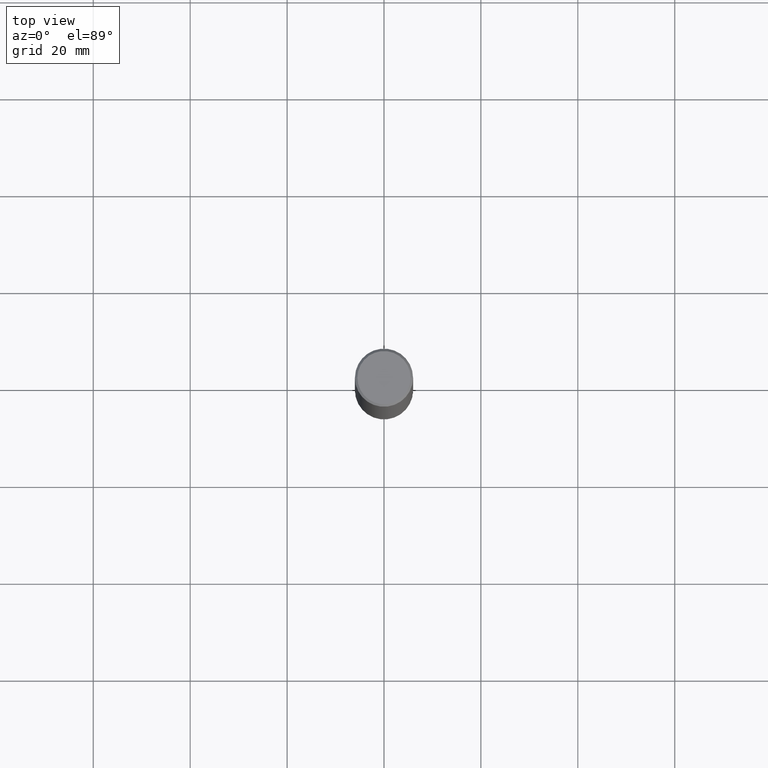
[diagram: clean part render]
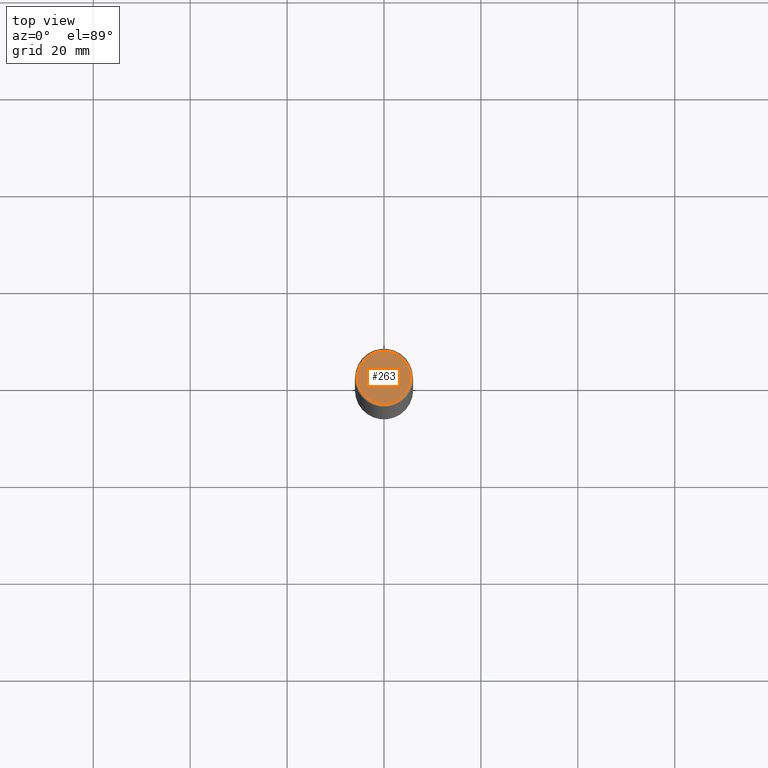
[diagram: same view with one face highlighted and labeled with its STEP entity id]
A machine part, top view. The second image highlights one B-rep face of the part: STEP entity #263.
In plain terms, the highlighted planar face has unit normal (0, -0, -1).
Its self-contained STEP definition (entity closure, byte-faithful):
#24 = AXIS2_PLACEMENT_3D ( 'NONE', #178, #226, #83 ) ;
#53 = CIRCLE ( 'NONE', #150, 0.2161999999999997257 ) ;
#58 = CIRCLE ( 'NONE', #24, 0.2161999999999997257 ) ;
#63 = ORIENTED_EDGE ( 'NONE', *, *, #134, .T. ) ;
#64 = FACE_OUTER_BOUND ( 'NONE', #349, .T. ) ;
#83 = DIRECTION ( 'NONE',  ( 1.000000000000000000, -6.982962677686267499E-15, 4.876217060660161841E-29 ) ) ;
#130 = EDGE_CURVE ( 'NONE', #258, #148, #58, .T. ) ;
#134 = EDGE_CURVE ( 'NONE', #148, #258, #53, .T. ) ;
#148 = VERTEX_POINT ( 'NONE', #347 ) ;
#150 = AXIS2_PLACEMENT_3D ( 'NONE', #201, #356, #239 ) ;
#178 = CARTESIAN_POINT ( 'NONE',  ( -1.043851414335219820E-46, 1.490343170380447200E-32, 4.268512490100411279E-18 ) ) ;
#201 = CARTESIAN_POINT ( 'NONE',  ( -1.043851414335219820E-46, 1.490343170380447200E-32, 4.268512490100411279E-18 ) ) ;
#213 = DIRECTION ( 'NONE',  ( -1.000000000000000000, 6.982962677686265922E-15, -4.876176775795935793E-29 ) ) ;
#216 = AXIS2_PLACEMENT_3D ( 'NONE', #262, #235, #213 ) ;
#226 = DIRECTION ( 'NONE',  ( -2.445468806185136597E-29, 3.491481338843145583E-15, 1.000000000000000000 ) ) ;
#235 = DIRECTION ( 'NONE',  ( 2.438088387897960049E-29, -3.491481338843145188E-15, -1.000000000000000000 ) ) ;
#239 = DIRECTION ( 'NONE',  ( 1.000000000000000000, -6.982962677686267499E-15, 4.876217060660161841E-29 ) ) ;
#258 = VERTEX_POINT ( 'NONE', #350 ) ;
#262 = CARTESIAN_POINT ( 'NONE',  ( 1.509716530915768746E-15, 0.2161999999999997257, -7.527240092128370190E-16 ) ) ;
#263 = ADVANCED_FACE ( 'NONE', ( #64 ), #297, .F. ) ;
#278 = ORIENTED_EDGE ( 'NONE', *, *, #130, .T. ) ;
#297 = PLANE ( 'NONE',  #216 ) ;
#347 = CARTESIAN_POINT ( 'NONE',  ( 0.2161999999999997257, -1.586759460484350213E-15, 4.268512490111238857E-18 ) ) ;
#349 = EDGE_LOOP ( 'NONE', ( #278, #63 ) ) ;
#350 = CARTESIAN_POINT ( 'NONE',  ( -0.2161999999999997257, 1.544631344304200197E-15, 4.268512490089730842E-18 ) ) ;
#356 = DIRECTION ( 'NONE',  ( -2.445468806185136597E-29, 3.491481338843145583E-15, 1.000000000000000000 ) ) ;